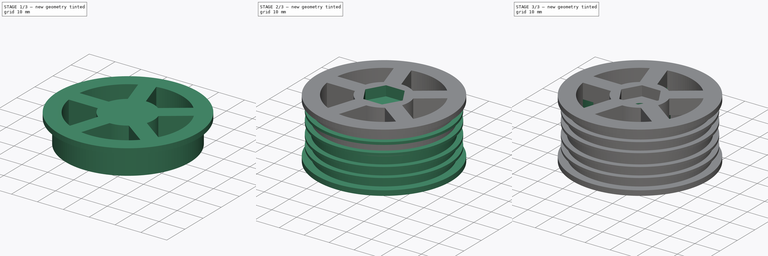
[diagram: build sequence overview — one tinted view per stage of 3, left to right]
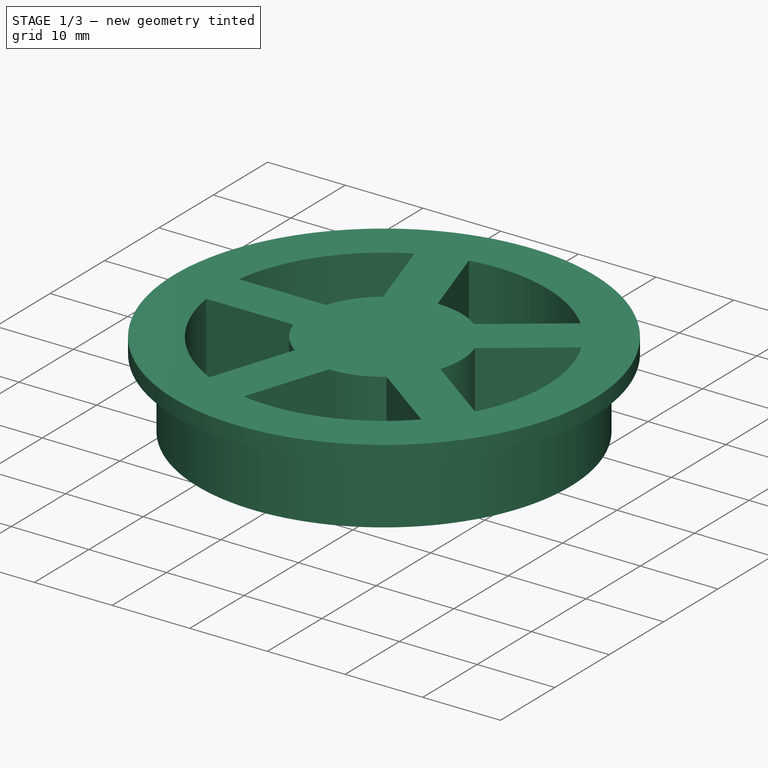
[diagram: stage 1 of 3 — iso view after this stage's code; geometry added in this stage tinted green]
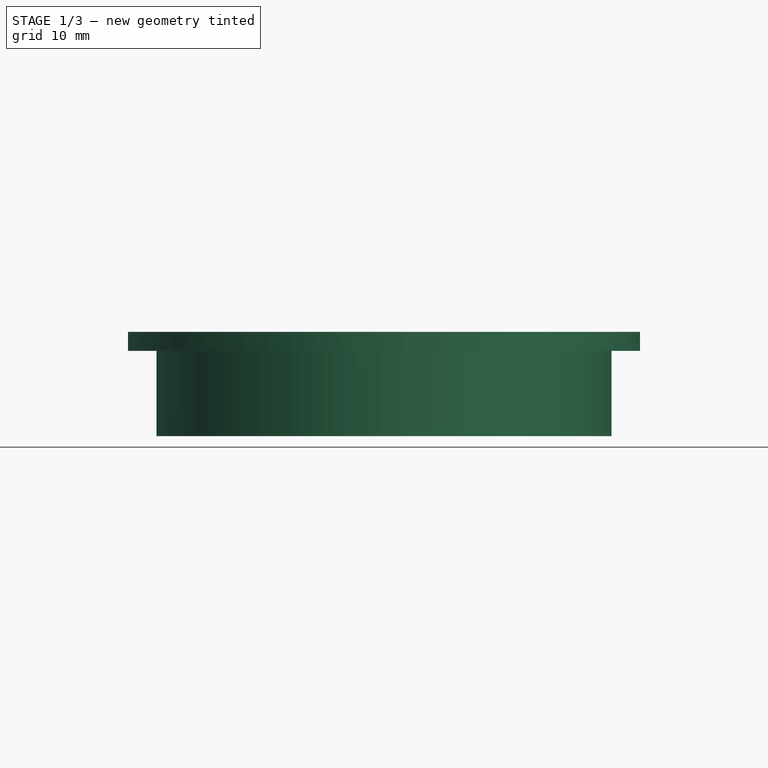
[diagram: stage 1 of 3 — front view after this stage's code; geometry added in this stage tinted green]
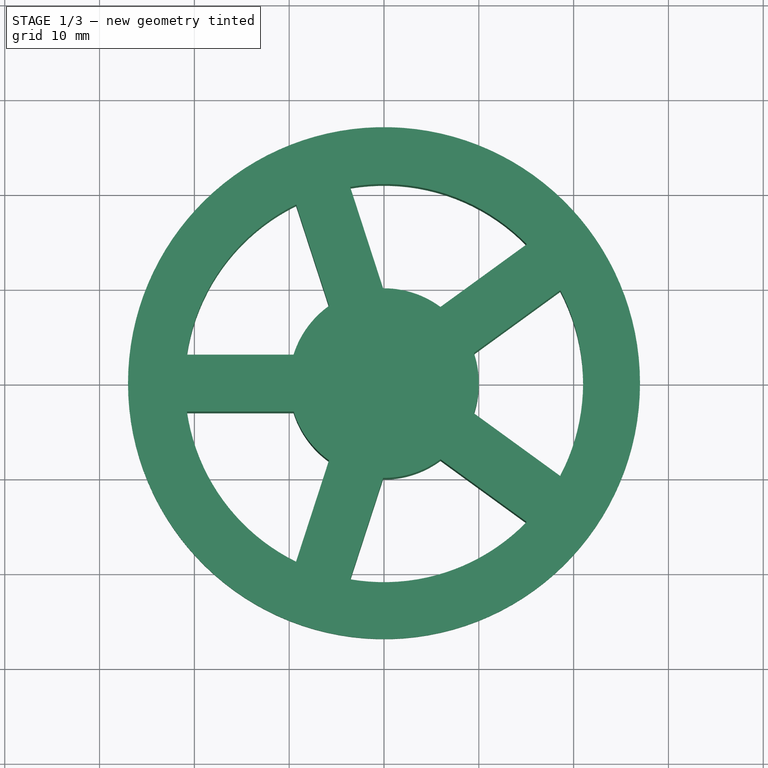
[diagram: stage 1 of 3 — top view after this stage's code; geometry added in this stage tinted green]
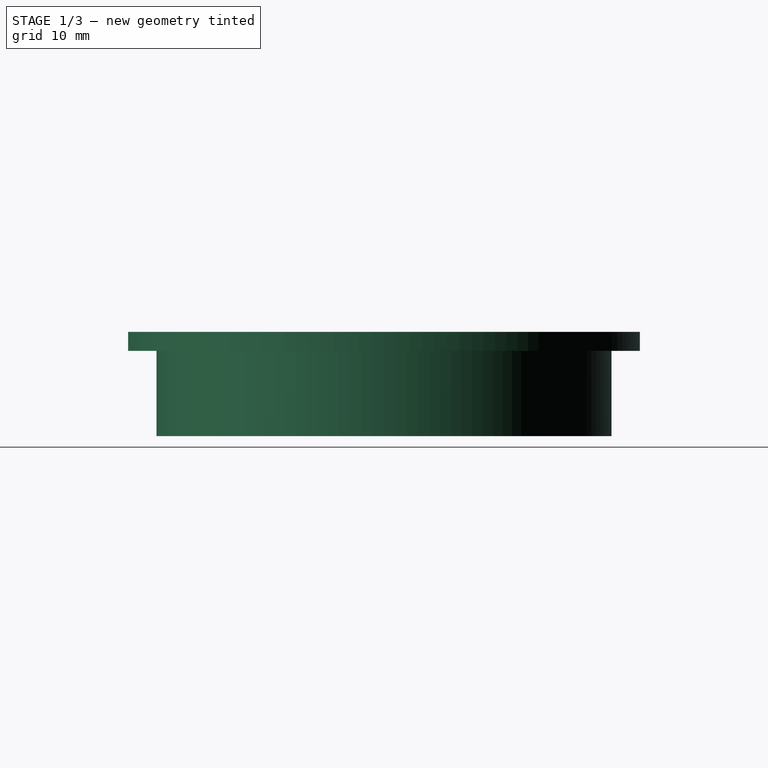
[diagram: stage 1 of 3 — right view after this stage's code; geometry added in this stage tinted green]
FCSTD DOCUMENT  (FreeCAD 1.0R38641 +678 (Git))
Label: wheel-disc
License: All rights reserved
LicenseURL: https://en.wikipedia.org/wiki/All_rights_reserved
objects: Sketcher::SketchObject×7, PartDesign::Pad×3, PartDesign::Pocket×2, PartDesign::Revolution×1, PartDesign::Hole×1, PartDesign::Body×1
note: 36 computed .brp shape members not serialized (recipe doc carries the construction recipe); baked Part::Feature solids carry a one-line shape summary decoded from their .brp

FEATURE [Sketcher::SketchObject] Sketch134
  ArcFitTolerance = 0
  AttachmentSupport = -> [XY_Plane016]
  FullyConstrained = true
  MakeInternals = false
  MapMode = 5
  sketch-geometry (2):
    g0: Circle CenterX=0 CenterY=0 CenterZ=0 NormalX=0 NormalY=0 NormalZ=1 AngleXU=0 Radius=27
    g1: Circle CenterX=0 CenterY=0 CenterZ=0 NormalX=0 NormalY=0 NormalZ=1 AngleXU=0 Radius=21
  constraints (4):
    c: Coincident(g0,g-1)
    c: Diameter(g0) = 54
    c: Coincident(g1,g0)
    c: Diameter(g1) = 42
FEATURE [PartDesign::Pad] Pad056
  Direction = (0,0,1)
  Length = 2
  Length2 = 10
  Profile = -> Sketch134
  ReferenceAxis = -> Sketch134 [N_Axis]
  Suppressed = false
  Type = 0
FEATURE [Sketcher::SketchObject] Sketch135
  ArcFitTolerance = 0
  AttachmentSupport = -> [Pad056]
  FullyConstrained = true
  MakeInternals = false
  MapMode = 5
  Placement = pos=(0,0,2) rot=(0,0,1;0rad)
  sketch-geometry (27):
    g0: ArcOfCircle CenterX=0 CenterY=0 CenterZ=0 NormalX=0 NormalY=0 NormalZ=1 AngleXU=0 Radius=10 StartAngle=2.18965 EndAngle=2.8369
    g1: ArcOfCircle CenterX=0 CenterY=0 CenterZ=0 NormalX=0 NormalY=0 NormalZ=1 AngleXU=0 Radius=21 StartAngle=2.0283 EndAngle=2.99825
    g2: LineSegment [constr] StartX=0 StartY=0 StartZ=0 EndX=-21 EndY=0 EndZ=0
    g3: LineSegment [constr] StartX=0 StartY=0 StartZ=0 EndX=-6.48936 EndY=19.9722 EndZ=0
    g4: LineSegment [constr] StartX=0 StartY=0 StartZ=0 EndX=16.9894 EndY=12.3435 EndZ=0
    g5: LineSegment [constr] StartX=0 StartY=0 StartZ=0 EndX=16.9894 EndY=-12.3435 EndZ=0
    g6: LineSegment [constr] StartX=0 StartY=0 StartZ=0 EndX=-6.48936 EndY=-19.9722 EndZ=0
    g7: ArcOfCircle CenterX=0 CenterY=0 CenterZ=0 NormalX=0 NormalY=0 NormalZ=1 AngleXU=0 Radius=21 StartAngle=3.28494 EndAngle=4.25488
    g8: LineSegment StartX=-5.801 StartY=8.14545 StartZ=0 EndX=-9.27597 EndY=18.8403 EndZ=0
    g9: LineSegment StartX=-0.0946647 StartY=9.99955 StartZ=0 EndX=-3.56963 EndY=20.6944 EndZ=0
    g10: LineSegment StartX=5.95417 StartY=8.03416 StartZ=0 EndX=15.0517 EndY=14.6439 EndZ=0
    g11: LineSegment StartX=9.48089 StartY=3.18006 StartZ=0 EndX=18.5785 EndY=9.78984 EndZ=0
    g12: LineSegment StartX=9.48089 StartY=-3.18006 StartZ=0 EndX=18.5785 EndY=-9.78984 EndZ=0
    g13: LineSegment StartX=5.95417 StartY=-8.03416 StartZ=0 EndX=15.0517 EndY=-14.6439 EndZ=0
    g14: LineSegment StartX=-5.801 StartY=-8.14545 StartZ=0 EndX=-9.27597 EndY=-18.8403 EndZ=0
    g15: LineSegment StartX=-0.0946647 StartY=-9.99955 StartZ=0 EndX=-3.56963 EndY=-20.6944 EndZ=0
    g16: LineSegment StartX=-20.7846 StartY=3 StartZ=0 EndX=-9.53939 EndY=3 EndZ=0
    g17: LineSegment StartX=-20.7846 StartY=-3 StartZ=0 EndX=-9.53939 EndY=-3 EndZ=0
    g18: Circle CenterX=0 CenterY=0 CenterZ=0 NormalX=0 NormalY=0 NormalZ=1 AngleXU=0 Radius=24
    g19: ArcOfCircle CenterX=0 CenterY=0 CenterZ=0 NormalX=0 NormalY=0 NormalZ=1 AngleXU=0 Radius=10 StartAngle=0.933011 EndAngle=1.58026
    g20: ArcOfCircle CenterX=0 CenterY=0 CenterZ=0 NormalX=0 NormalY=0 NormalZ=1 AngleXU=0 Radius=10 StartAngle=5.95956 EndAngle=6.60681
    g21: ArcOfCircle CenterX=0 CenterY=0 CenterZ=0 NormalX=0 NormalY=0 NormalZ=1 AngleXU=0 Radius=10 StartAngle=4.70292 EndAngle=5.35017
    g22: ArcOfCircle CenterX=0 CenterY=0 CenterZ=0 NormalX=0 NormalY=0 NormalZ=1 AngleXU=0 Radius=10 StartAngle=3.44629 EndAngle=4.09354
    g23: ArcOfCircle CenterX=0 CenterY=0 CenterZ=0 NormalX=0 NormalY=0 NormalZ=1 AngleXU=0 Radius=21 StartAngle=4.54158 EndAngle=5.51152
    g24: ArcOfCircle CenterX=0 CenterY=0 CenterZ=0 NormalX=0 NormalY=0 NormalZ=1 AngleXU=0 Radius=21 StartAngle=5.79821 EndAngle=6.76816
    g25: ArcOfCircle CenterX=0 CenterY=0 CenterZ=0 NormalX=0 NormalY=0 NormalZ=1 AngleXU=0 Radius=21 StartAngle=0.771666 EndAngle=1.74161
    g26: Circle [constr] CenterX=0 CenterY=0 CenterZ=0 NormalX=0 NormalY=0 NormalZ=1 AngleXU=0 Radius=21
  constraints (85):
    c: Coincident(g0,g-1)
    c: Diameter(g0) = 20
    c: Coincident(g1,g0)
    c: Diameter(g1) = 42
    c: Coincident(g2,g0)
    c: Coincident(g3,g0)
    c: Coincident(g4,g0)
    c: PointOnObject(g4,g1)
    c: Coincident(g5,g0)
    c: PointOnObject(g5,g1)
    c: Coincident(g6,g0)
    c: PointOnObject(g2,g-1)
    c: Angle(g3,g2) = 1.25664
    c: Angle(g4,g3) = 1.25664
    c: Angle(g5,g4) = 1.25664
    c: Angle(g6,g5) = 1.25664
    c: Coincident(g7,g0)
    c: PointOnObject(g8,g7)
    c: PointOnObject(g9,g7)
    c: PointOnObject(g10,g7)
    c: PointOnObject(g11,g7)
    c: PointOnObject(g12,g7)
    c: PointOnObject(g13,g7)
    c: PointOnObject(g15,g7)
    c: Parallel(g9,g3)
    c: Parallel(g8,g3)
    c: Parallel(g10,g4)
    c: Parallel(g11,g4)
    c: Parallel(g12,g5)
    c: Parallel(g13,g5)
    c: Parallel(g15,g6)
    c: Parallel(g14,g6)
    c: Parallel(g17,g2)
    c: Parallel(g16,g2)
    c: Distance(g5,g12) = 3
    c: Distance(g5,g13) = 3
    c: Distance(g6,g15) = 3
    c: Distance(g6,g14) = 3
    c: Distance(g2,g17) = 3
    c: Distance(g2,g16) = 3
    c: Distance(g3,g8) = 3
    c: Distance(g3,g9) = 3
    c: Distance(g4,g10) = 3
    c: Distance(g4,g11) = 3
    c: Coincident(g18,g0)
    c: Diameter(g18) = 48
    c: Coincident(g0,g8)
    c: Coincident(g19,g9)
    c: Equal(g0,g19)
    c: Coincident(g19,g10)
    c: Coincident(g0,g19)
    c: Coincident(g20,g11)
    c: Equal(g0,g20)
    c: Coincident(g20,g12)
    c: Coincident(g0,g20)
    c: Coincident(g21,g13)
    c: Equal(g0,g21)
    c: Coincident(g21,g15)
    c: Coincident(g0,g21)
    c: Coincident(g22,g14)
    c: Equal(g0,g22)
    c: Coincident(g0,g16)
    c: Coincident(g22,g17)
    c: Coincident(g0,g22)
    c: Coincident(g7,g17)
    c: Equal(g7,g23)
    c: Coincident(g7,g14)
    c: Coincident(g7,g23)
    c: PointOnObject(g23,g15)
    c: Equal(g23,g24)
    c: PointOnObject(g23,g13)
    c: Coincident(g23,g24)
    c: PointOnObject(g24,g12)
    c: Equal(g24,g25)
    c: PointOnObject(g24,g11)
    c: Coincident(g24,g25)
    c: PointOnObject(g25,g10)
    c: PointOnObject(g25,g9)
    c: Coincident(g26,g0)
    c: PointOnObject(g5,g26)
    c: PointOnObject(g6,g26)
    c: PointOnObject(g2,g26)
    c: PointOnObject(g3,g26)
    c: Coincident(g1,g8)
    c: Coincident(g16,g1)
FEATURE [PartDesign::Pad] Pad057
  BaseFeature = -> Pad056
  Direction = (0,0,1)
  Length = 11
  Length2 = 10
  Profile = -> Sketch135
  ReferenceAxis = -> Sketch135 [N_Axis]
  Reversed = true
  Suppressed = false
  Type = 0
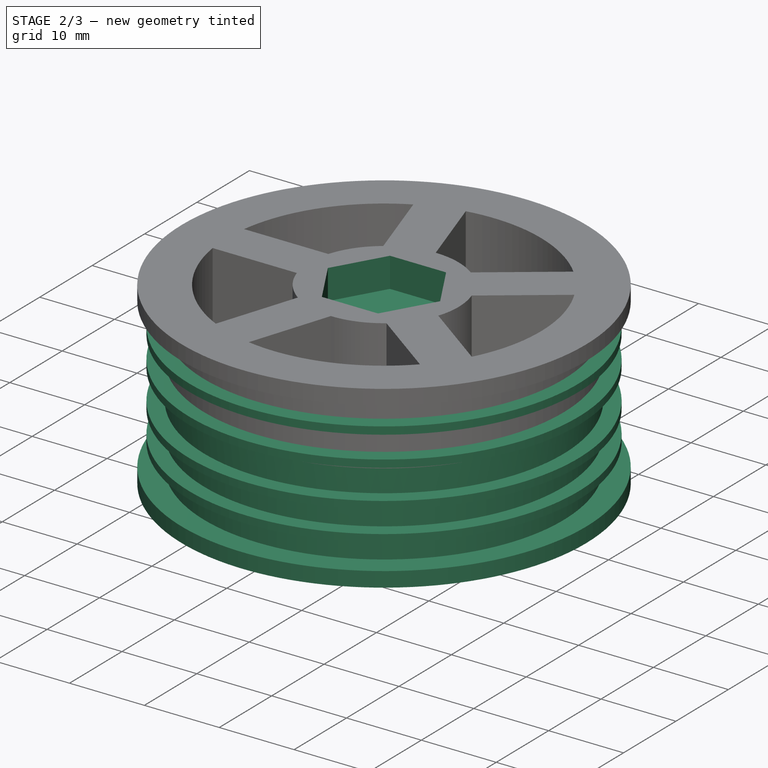
[diagram: stage 2 of 3 — iso view after this stage's code; geometry added in this stage tinted green]
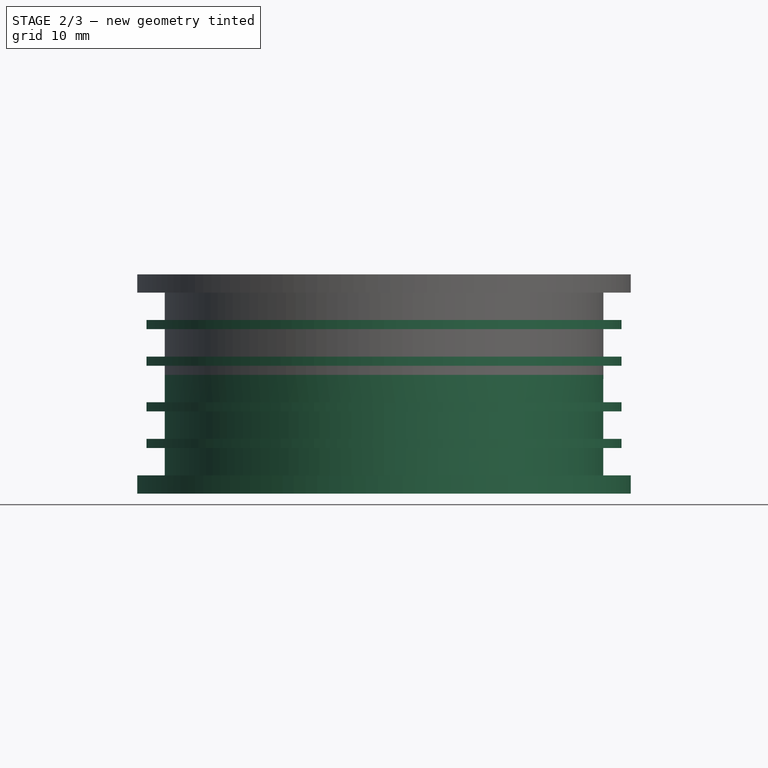
[diagram: stage 2 of 3 — front view after this stage's code; geometry added in this stage tinted green]
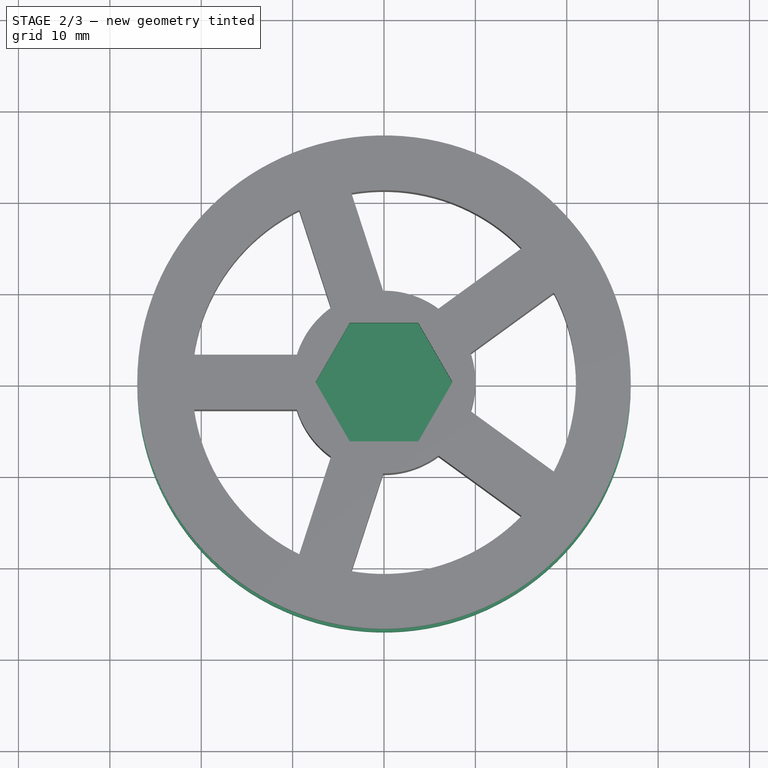
[diagram: stage 2 of 3 — top view after this stage's code; geometry added in this stage tinted green]
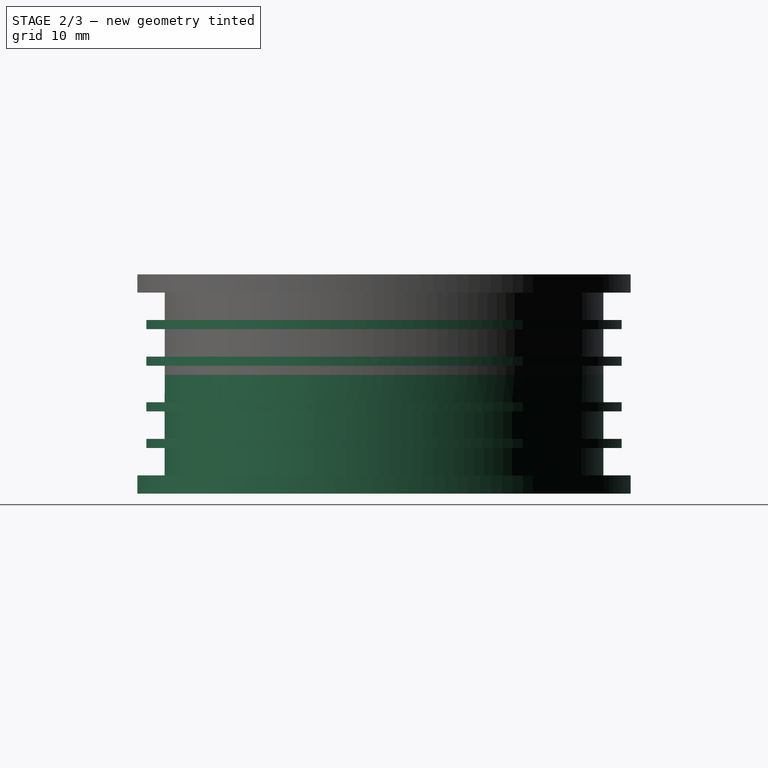
[diagram: stage 2 of 3 — right view after this stage's code; geometry added in this stage tinted green]
FEATURE [Sketcher::SketchObject] Sketch136
  ArcFitTolerance = 0
  AttachmentSupport = -> [YZ_Plane016]
  FullyConstrained = true
  MakeInternals = false
  MapMode = 5
  Placement = pos=(0,0,0) rot=(0.57735,0.57735,0.57735;2.0944rad)
  sketch-geometry (20):
    g0: LineSegment StartX=23 StartY=0 StartZ=0 EndX=23 EndY=-20 EndZ=0
    g1: LineSegment StartX=23 StartY=0 StartZ=0 EndX=24 EndY=0 EndZ=0
    g2: LineSegment StartX=24 StartY=0 StartZ=0 EndX=24 EndY=-3 EndZ=0
    g3: LineSegment StartX=24 StartY=-3 StartZ=0 EndX=26 EndY=-3 EndZ=0
    g4: LineSegment StartX=26 StartY=-3 StartZ=0 EndX=26 EndY=-4 EndZ=0
    g5: LineSegment StartX=26 StartY=-4 StartZ=0 EndX=24 EndY=-4 EndZ=0
    g6: LineSegment StartX=24 StartY=-4 StartZ=0 EndX=24 EndY=-7 EndZ=0
    g7: LineSegment StartX=24 StartY=-7 StartZ=0 EndX=26 EndY=-7 EndZ=0
    g8: LineSegment StartX=26 StartY=-7 StartZ=0 EndX=26 EndY=-8 EndZ=0
    g9: LineSegment StartX=26 StartY=-8 StartZ=0 EndX=24 EndY=-8 EndZ=0
    g10: LineSegment StartX=24 StartY=-8 StartZ=0 EndX=24 EndY=-12 EndZ=0
    g11: LineSegment StartX=24 StartY=-12 StartZ=0 EndX=26 EndY=-12 EndZ=0
    g12: LineSegment StartX=26 StartY=-12 StartZ=0 EndX=26 EndY=-13 EndZ=0
    g13: LineSegment StartX=26 StartY=-13 StartZ=0 EndX=24 EndY=-13 EndZ=0
    g14: LineSegment StartX=24 StartY=-13 StartZ=0 EndX=24 EndY=-16 EndZ=0
    g15: LineSegment StartX=24 StartY=-16 StartZ=0 EndX=26 EndY=-16 EndZ=0
    g16: LineSegment StartX=26 StartY=-16 StartZ=0 EndX=26 EndY=-17 EndZ=0
    g17: LineSegment StartX=26 StartY=-17 StartZ=0 EndX=24 EndY=-17 EndZ=0
    g18: LineSegment StartX=24 StartY=-17 StartZ=0 EndX=24 EndY=-20 EndZ=0
    g19: LineSegment StartX=23 StartY=-20 StartZ=0 EndX=24 EndY=-20 EndZ=0
  constraints (60):
    c: PointOnObject(g0,g-1)
    c: Vertical(g0)
    c: Coincident(g1,g0)
    c: PointOnObject(g1,g-1)
    c: Coincident(g2,g1)
    c: Vertical(g2)
    c: Coincident(g3,g2)
    c: Horizontal(g3)
    c: Coincident(g4,g3)
    c: Vertical(g4)
    c: Coincident(g5,g4)
    c: Horizontal(g5)
    c: Coincident(g6,g5)
    c: Vertical(g6)
    c: Coincident(g7,g6)
    c: Horizontal(g7)
    c: Coincident(g8,g7)
    c: Vertical(g8)
    c: Coincident(g9,g8)
    c: Horizontal(g9)
    c: Coincident(g10,g9)
    c: Vertical(g10)
    c: DistanceX(g1,g1) = 1
    c: Distance(g-1,g0) = 23
    c: DistanceY(g0,g0) = 20
    c: DistanceY(g2,g2) = 3
    c: DistanceY(g4,g4) = 1
    c: DistanceY(g6,g6) = 3
    c: DistanceY(g8,g8) = 1
    c: DistanceX(g3,g3) = 2
    c: DistanceX(g7,g7) = 2
    c: Distance(g-1,g6) = 24
    c: DistanceX(g0,g10) = 1
    c: Coincident(g11,g10)
    c: Horizontal(g11)
    c: Coincident(g12,g11)
    c: Vertical(g12)
    c: Coincident(g13,g12)
    c: Horizontal(g13)
    c: Coincident(g14,g13)
    c: Vertical(g14)
    c: DistanceX(g0,g14) = 1
    c: DistanceY(g10,g10) = 4
    c: DistanceY(g12,g12) = 1
    c: DistanceX(g13,g13) = 2
    c: Coincident(g15,g14)
    c: Horizontal(g15)
    c: Coincident(g16,g15)
    c: Vertical(g16)
    c: Coincident(g17,g16)
    c: Horizontal(g17)
    c: Coincident(g18,g17)
    c: Vertical(g18)
    c: Coincident(g19,g0)
    c: Coincident(g19,g18)
    c: Horizontal(g19)
    c: DistanceY(g14,g14) = 3
    c: DistanceY(g16,g16) = 1
    c: DistanceX(g17,g17) = 2
    c: DistanceX(g19,g19) = 1
FEATURE [PartDesign::Revolution] Revolution
  Angle = 360
  Angle2 = 60
  Axis = (0,0,1)
  Base = (0,0,0)
  BaseFeature = -> Pad057
  Profile = -> Sketch136
  ReferenceAxis = -> Sketch136 [V_Axis]
  Reversed = true
  Suppressed = false
  Type = 0
FEATURE [Sketcher::SketchObject] Sketch137
  ArcFitTolerance = 0
  AttachmentSupport = -> [Revolution]
  FullyConstrained = true
  MakeInternals = false
  MapMode = 5
  Placement = pos=(0,0,-20) rot=(1,0,0;3.14159rad)
  sketch-geometry (2):
    g0: Circle CenterX=0 CenterY=0 CenterZ=0 NormalX=0 NormalY=0 NormalZ=1 AngleXU=0 Radius=23
    g1: Circle CenterX=0 CenterY=0 CenterZ=0 NormalX=0 NormalY=0 NormalZ=1 AngleXU=0 Radius=27
  constraints (4):
    c: Coincident(g0,g-1)
    c: Diameter(g0) = 46
    c: Coincident(g1,g0)
    c: Diameter(g1) = 54
FEATURE [PartDesign::Pad] Pad058
  BaseFeature = -> Revolution
  Direction = (0,0,-1)
  Length = 2
  Length2 = 10
  Profile = -> Sketch137
  ReferenceAxis = -> Sketch137 [N_Axis]
  Suppressed = false
  Type = 0
FEATURE [Sketcher::SketchObject] Sketch138
  ArcFitTolerance = 0
  AttachmentSupport = -> [Pad058]
  FullyConstrained = true
  MakeInternals = false
  MapMode = 5
  Placement = pos=(0,0,2) rot=(0,0,1;0rad)
  sketch-geometry (7):
    g0: LineSegment StartX=7.5 StartY=0 StartZ=0 EndX=3.75 EndY=6.49519 EndZ=0
    g1: LineSegment StartX=3.75 StartY=6.49519 StartZ=0 EndX=-3.75 EndY=6.49519 EndZ=0
    g2: LineSegment StartX=-3.75 StartY=6.49519 StartZ=0 EndX=-7.5 EndY=-2.1849e-12 EndZ=0
    g3: LineSegment StartX=-7.5 StartY=-2.1849e-12 StartZ=0 EndX=-3.75 EndY=-6.49519 EndZ=0
    g4: LineSegment StartX=-3.75 StartY=-6.49519 StartZ=0 EndX=3.75 EndY=-6.49519 EndZ=0
    g5: LineSegment StartX=3.75 StartY=-6.49519 StartZ=0 EndX=7.5 EndY=0 EndZ=0
    g6: Circle [constr] CenterX=0 CenterY=0 CenterZ=0 NormalX=0 NormalY=0 NormalZ=1 AngleXU=0 Radius=7.5
  constraints (16):
    c: Coincident(g0,g1)
    c: Coincident(g1,g2)
    c: Coincident(g2,g3)
    c: Coincident(g3,g4)
    c: Coincident(g4,g5)
    c: Coincident(g5,g0)
    c: Equal(g0, g1-g5) x5
    c: PointOnObject(g0,g6)
    c: PointOnObject(g1,g6)
    c: PointOnObject(g2,g6)
    c: PointOnObject(g3,g6)
    c: PointOnObject(g4,g6)
    c: PointOnObject(g5,g6)
    c: Coincident(g6,g-1)
    c: Diameter(g6) = 15
    c: PointOnObject(g0,g-1)
FEATURE [PartDesign::Pocket] Pocket054
  BaseFeature = -> Pad058
  Direction = (0,0,-1)
  Length = 4
  Length2 = 5
  Profile = -> Sketch138
  ReferenceAxis = -> Sketch138 [N_Axis]
  Suppressed = false
  Type = 0
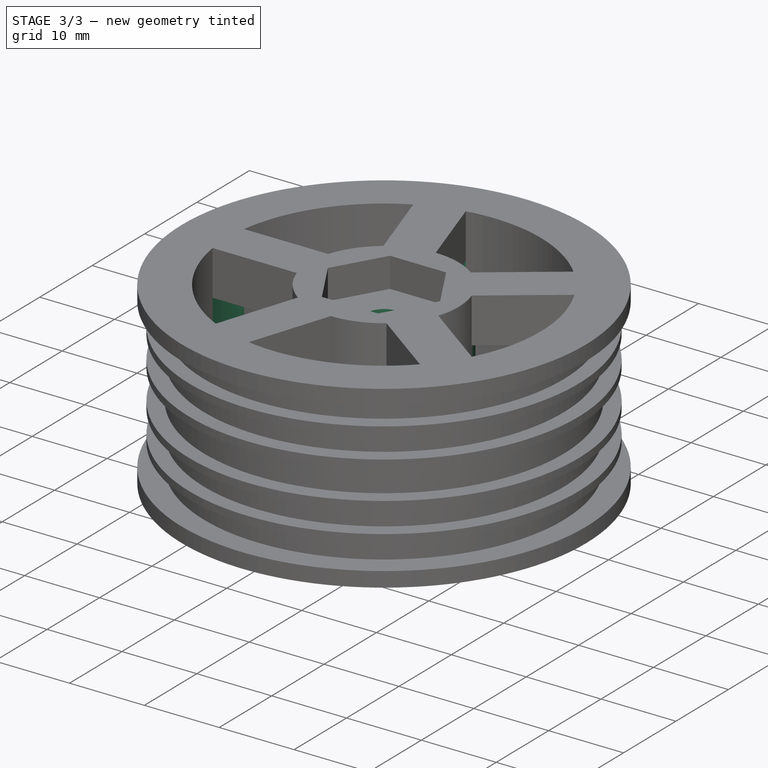
[diagram: stage 3 of 3 — iso view after this stage's code; geometry added in this stage tinted green]
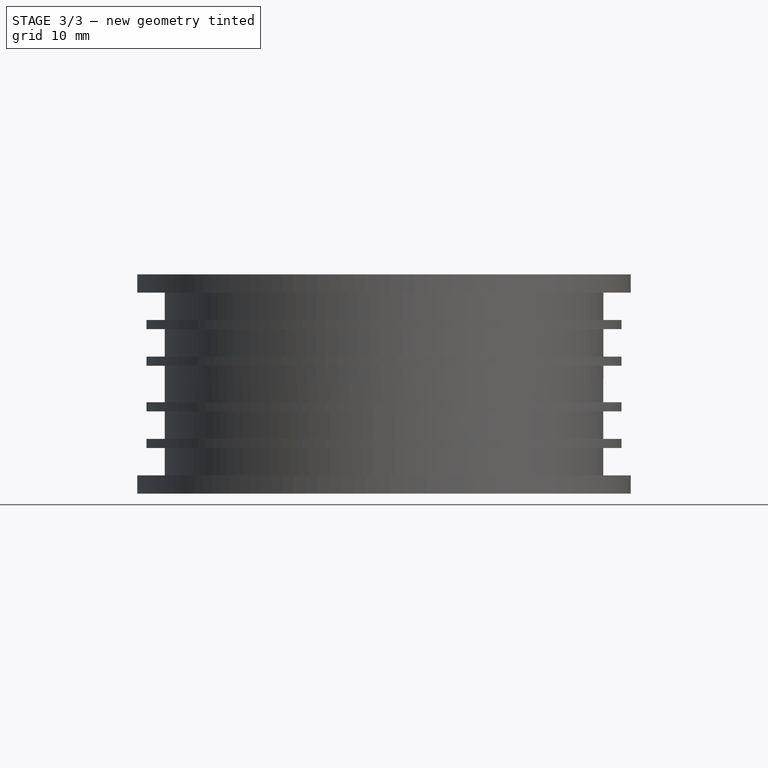
[diagram: stage 3 of 3 — front view after this stage's code; geometry added in this stage tinted green]
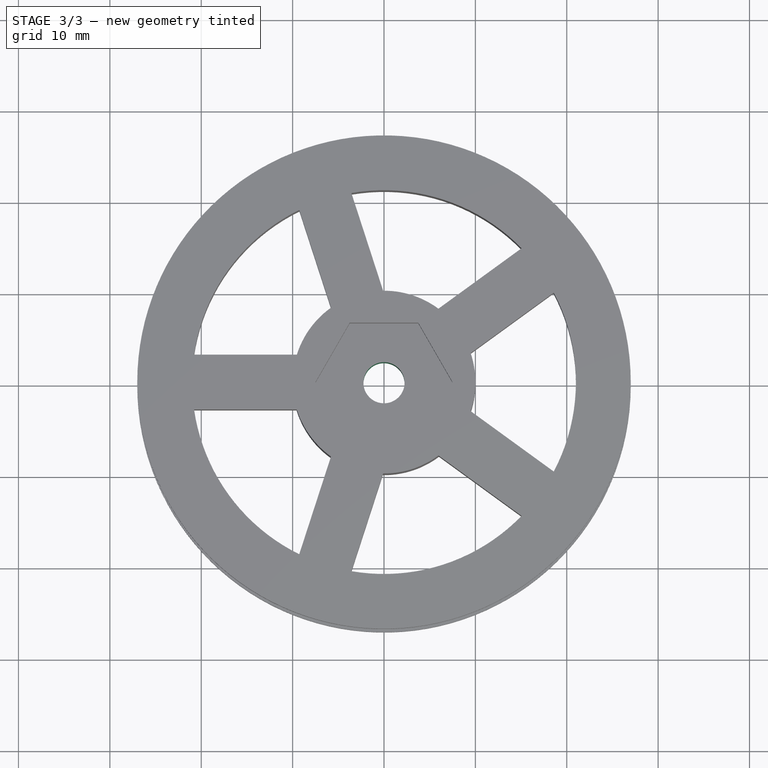
[diagram: stage 3 of 3 — top view after this stage's code; geometry added in this stage tinted green]
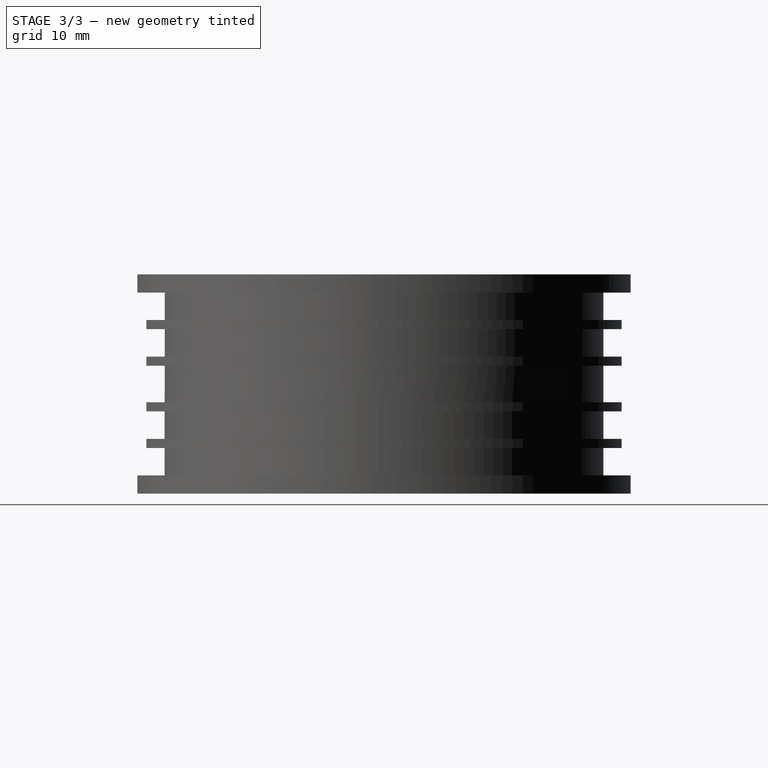
[diagram: stage 3 of 3 — right view after this stage's code; geometry added in this stage tinted green]
FEATURE [Sketcher::SketchObject] Sketch139
  ArcFitTolerance = 0
  AttachmentSupport = -> [Pocket054]
  FullyConstrained = true
  MakeInternals = false
  MapMode = 5
  Placement = pos=(0,0,2) rot=(0,0,1;0rad)
  sketch-geometry (1):
    g0: Circle CenterX=0 CenterY=0 CenterZ=0 NormalX=0 NormalY=0 NormalZ=1 AngleXU=0 Radius=2.25
  constraints (2):
    c: Coincident(g0,g-1)
    c: Diameter(g0) = 4.5
FEATURE [PartDesign::Hole] Hole008
  BaseFeature = -> Pocket054
  CustomThreadClearance = 0
  Depth = 25
  DepthType = 0
  Diameter = 4.5
  DrillForDepth = false
  DrillPoint = 1
  DrillPointAngle = 118
  HoleCutCountersinkAngle = 90
  HoleCutCustomValues = false
  HoleCutDepth = 4
  HoleCutDiameter = 7.5
  HoleCutType = 1
  ModelThread = false
  Profile = -> Sketch139
  Suppressed = false
  Tapered = false
  TaperedAngle = 90
  ThreadClass = 0
  ThreadDepth = 25
  ThreadDepthType = 0
  ThreadDirection = 0
  ThreadFit = 0
  ThreadSize = 0
  ThreadType = 0
  Threaded = false
  UseCustomThreadClearance = false
FEATURE [Sketcher::SketchObject] Sketch158
  ArcFitTolerance = 0
  AttachmentSupport = -> [Hole008]
  FullyConstrained = true
  MakeInternals = false
  MapMode = 5
  Placement = pos=(0,0,-9) rot=(1,0,0;3.14159rad)
  sketch-geometry (2):
    g0: Circle CenterX=0 CenterY=0 CenterZ=0 NormalX=0 NormalY=0 NormalZ=1 AngleXU=0 Radius=10
    g1: Circle CenterX=0 CenterY=0 CenterZ=0 NormalX=0 NormalY=0 NormalZ=1 AngleXU=0 Radius=21
  constraints (4):
    c: Coincident(g0,g-1)
    c: Coincident(g1,g0)
    c: Diameter(g0) = 20
    c: Diameter(g1) = 42
FEATURE [PartDesign::Pocket] Pocket063
  BaseFeature = -> Hole008
  Direction = (0,0,1)
  Length = 5
  Length2 = 5
  Profile = -> Sketch158
  ReferenceAxis = -> Sketch158 [N_Axis]
  Suppressed = false
  Type = 0
FEATURE [PartDesign::Body] Body016  label="Disk"
  AllowCompound = false
  Group = -> [Sketch134,Pad056,Sketch135,Pad057,Sketch136,Revolution,Sketch137,Pad058,Sketch138,Pocket054,Sketch139,Hole008,Sketch158,Pocket063]
  Origin = -> Origin016
  Placement = pos=(2,-105,121) rot=(0,0,1;0rad)
  Tip = -> Pocket063
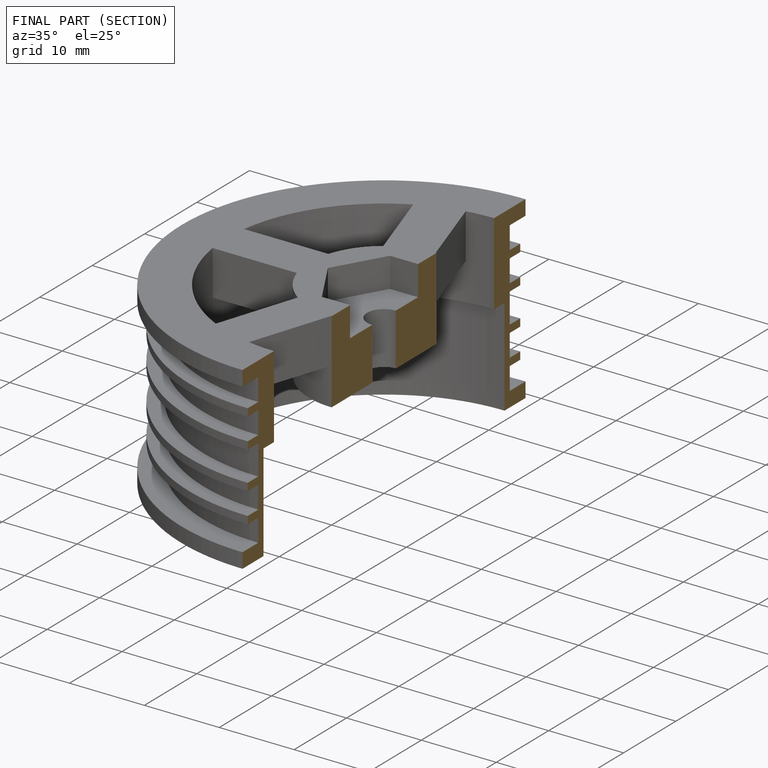
[diagram: finished part — half-section view (interior)]
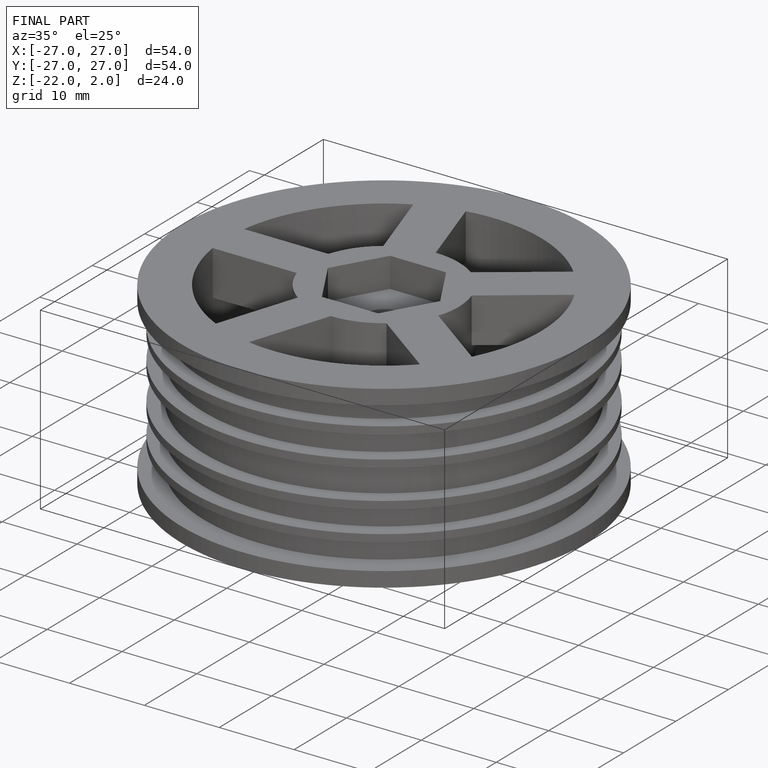
[diagram: finished part — iso view with bounding-box wireframe]
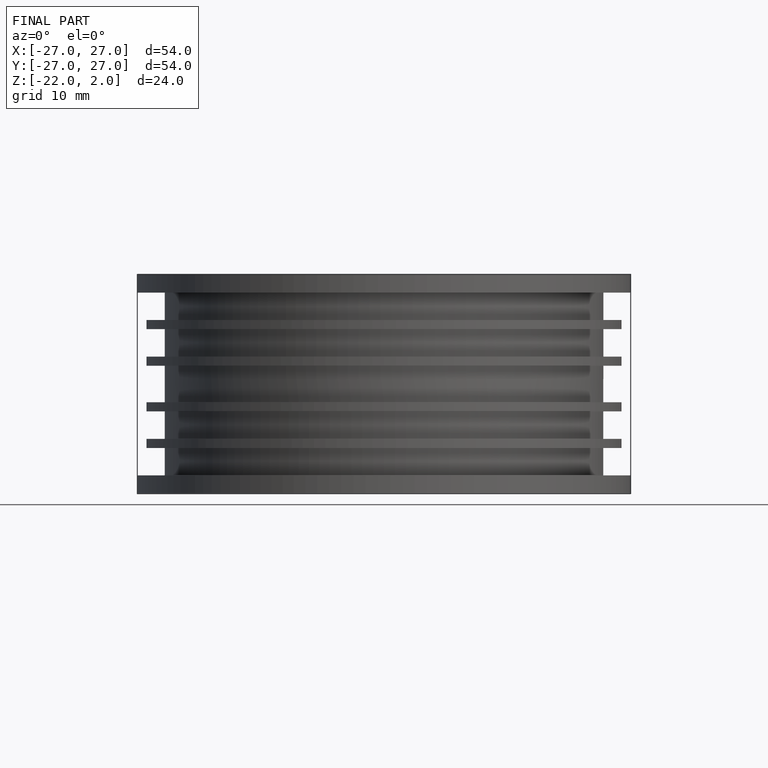
[diagram: finished part — front view with bounding-box wireframe]
